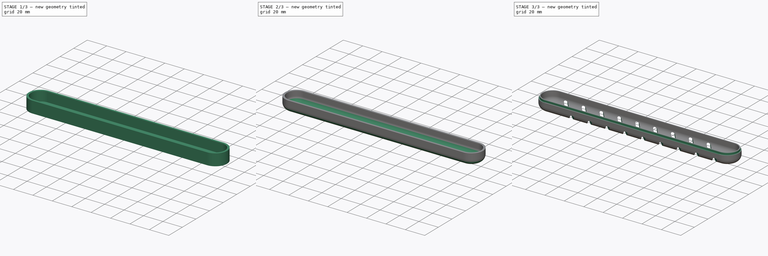
[diagram: build sequence overview — one tinted view per stage of 3, left to right]
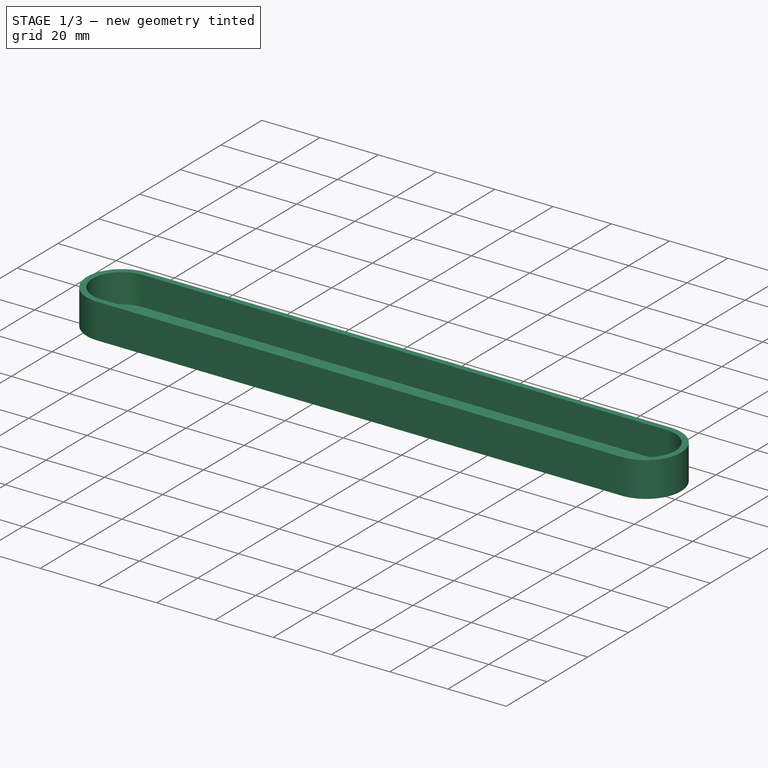
[diagram: stage 1 of 3 — iso view after this stage's code; geometry added in this stage tinted green]
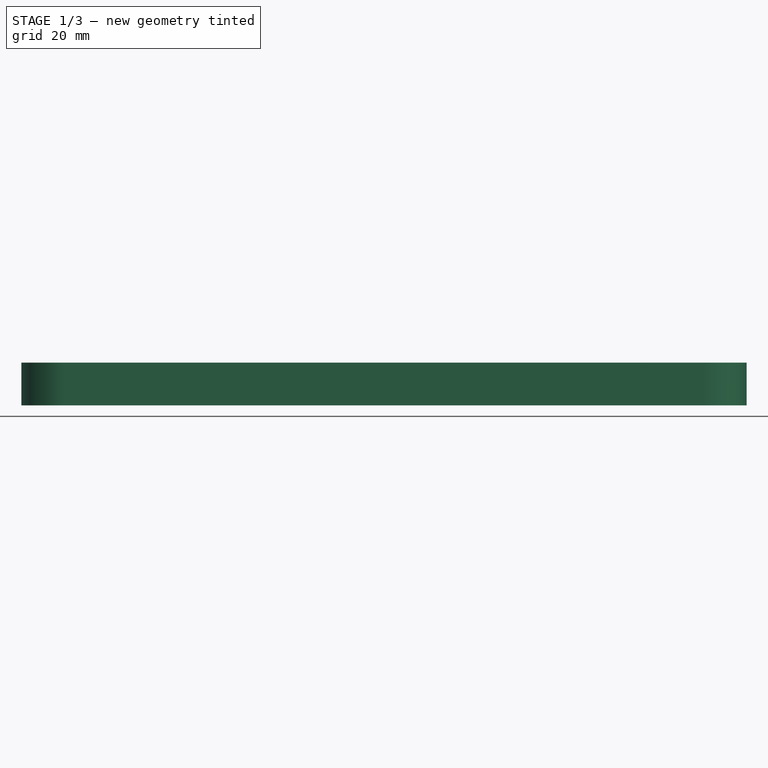
[diagram: stage 1 of 3 — front view after this stage's code; geometry added in this stage tinted green]
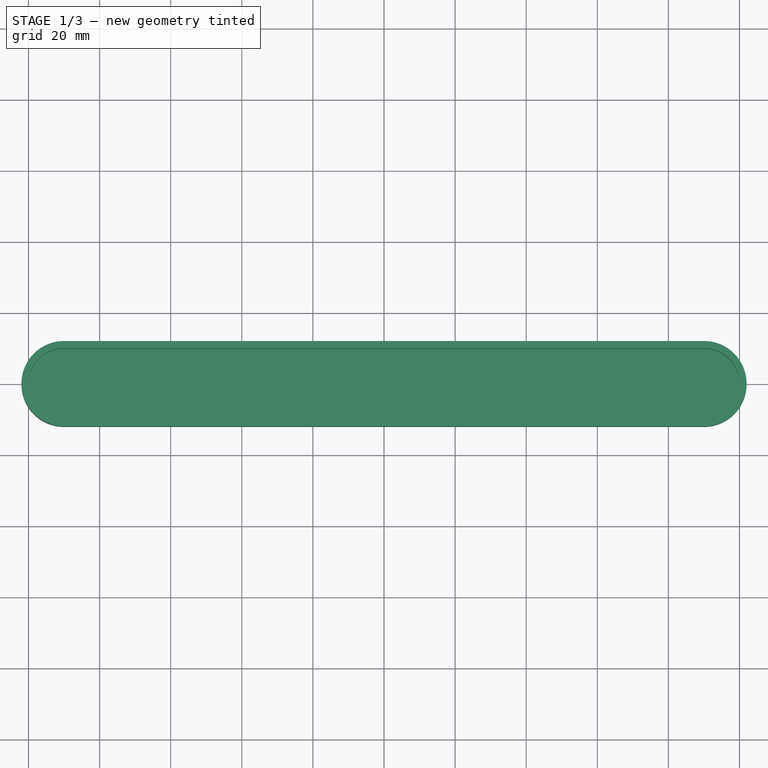
[diagram: stage 1 of 3 — top view after this stage's code; geometry added in this stage tinted green]
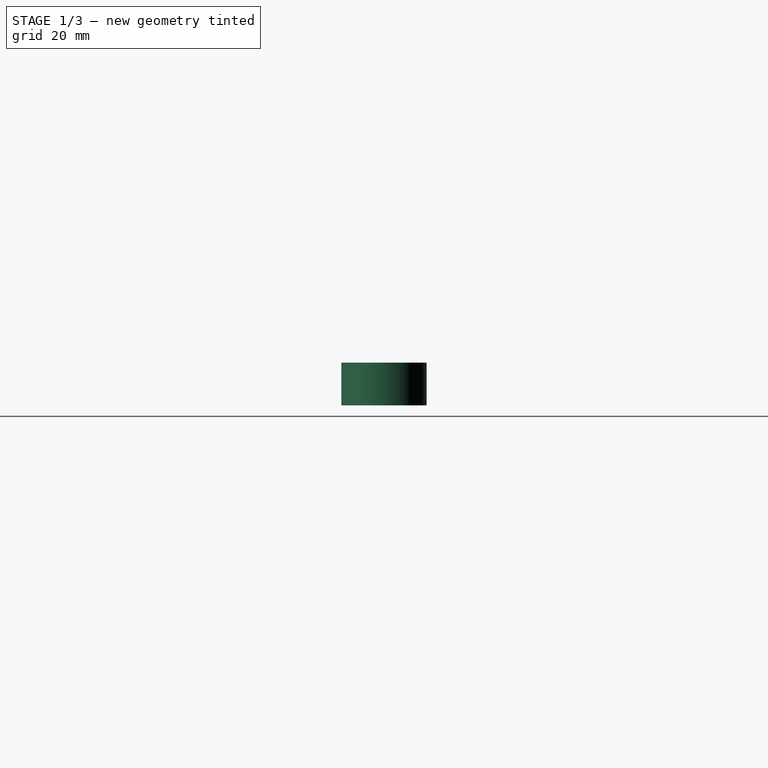
[diagram: stage 1 of 3 — right view after this stage's code; geometry added in this stage tinted green]
FCSTD DOCUMENT  (FreeCAD 0.20R)
Label: GM_case_top-2
License: All rights reserved
LicenseURL: http://en.wikipedia.org/wiki/All_rights_reserved
objects: Sketcher::SketchObject×4, PartDesign::Pocket×3, PartDesign::Fillet×2, PartDesign::Pad×1, PartDesign::Plane×1, PartDesign::Body×1
note: 18 computed .brp shape members not serialized (recipe doc carries the construction recipe); baked Part::Feature solids carry a one-line shape summary decoded from their .brp

FEATURE [Sketcher::SketchObject] Sketch
  FullyConstrained = true
  MapMode = 5
  Support = -> [XY_Plane]
  sketch-geometry (4):
    g0: LineSegment StartX=-90 StartY=12 StartZ=0 EndX=90 EndY=12 EndZ=0
    g1: LineSegment StartX=-90 StartY=-12 StartZ=0 EndX=90 EndY=-12 EndZ=0
    g2: ArcOfCircle CenterX=90 CenterY=0 CenterZ=0 NormalX=0 NormalY=0 NormalZ=1 AngleXU=0 Radius=12 StartAngle=4.71239 EndAngle=7.85398
    g3: ArcOfCircle CenterX=-90 CenterY=0 CenterZ=0 NormalX=0 NormalY=0 NormalZ=1 AngleXU=0 Radius=12 StartAngle=1.5708 EndAngle=4.71239
  constraints (13):
    c: Horizontal(g0)
    c: Horizontal(g1)
    c: PointOnObject(g2,g-1)
    c: Coincident(g2,g0)
    c: Coincident(g2,g1)
    c: Coincident(g3,g0)
    c: Coincident(g3,g1)
    c: Symmetric(g2,g3,g-2)
    c: Vertical(g1,g3)
    c: Vertical(g3,g0)
    c: Vertical(g1,g2)
    c: Radius(g2) = 12
    c: DistanceX(g3,g2) = 180
FEATURE [PartDesign::Pad] Pad
  Direction = (1,1,1)
  Length = 12
  Length2 = 100
  Profile = -> Sketch
  Type = 0
FEATURE [Sketcher::SketchObject] Sketch001
  FullyConstrained = true
  MapMode = 5
  Placement = pos=(0,0,12) rot=(0,0,1;0rad)
  Support = -> [Pad]
  sketch-geometry (4):
    g0: LineSegment StartX=-90 StartY=10 StartZ=0 EndX=90 EndY=10 EndZ=0
    g1: LineSegment StartX=-90 StartY=-10 StartZ=0 EndX=90 EndY=-10 EndZ=0
    g2: ArcOfCircle CenterX=90 CenterY=0 CenterZ=0 NormalX=0 NormalY=0 NormalZ=1 AngleXU=0 Radius=10 StartAngle=4.71239 EndAngle=7.85398
    g3: ArcOfCircle CenterX=-90 CenterY=0 CenterZ=0 NormalX=0 NormalY=0 NormalZ=1 AngleXU=0 Radius=10 StartAngle=1.5708 EndAngle=4.71239
  constraints (13):
    c: Horizontal(g0)
    c: Horizontal(g1)
    c: PointOnObject(g2,g-1)
    c: Coincident(g2,g0)
    c: Coincident(g2,g1)
    c: Coincident(g3,g0)
    c: Coincident(g3,g1)
    c: Symmetric(g2,g3,g-2)
    c: Vertical(g1,g3)
    c: Vertical(g3,g0)
    c: Vertical(g1,g2)
    c: DistanceX(g3,g2) = 180
    c: Radius(g2) = 10
FEATURE [PartDesign::Pocket] Pocket
  BaseFeature = -> Pad
  Direction = (1,1,1)
  Length = 10
  Length2 = 100
  Profile = -> Sketch001
  Type = 0
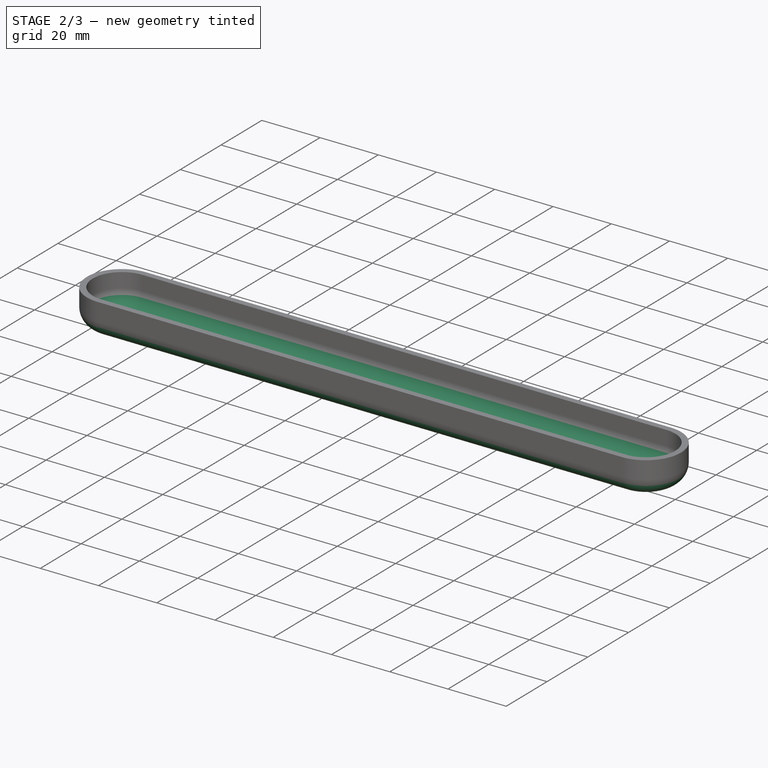
[diagram: stage 2 of 3 — iso view after this stage's code; geometry added in this stage tinted green]
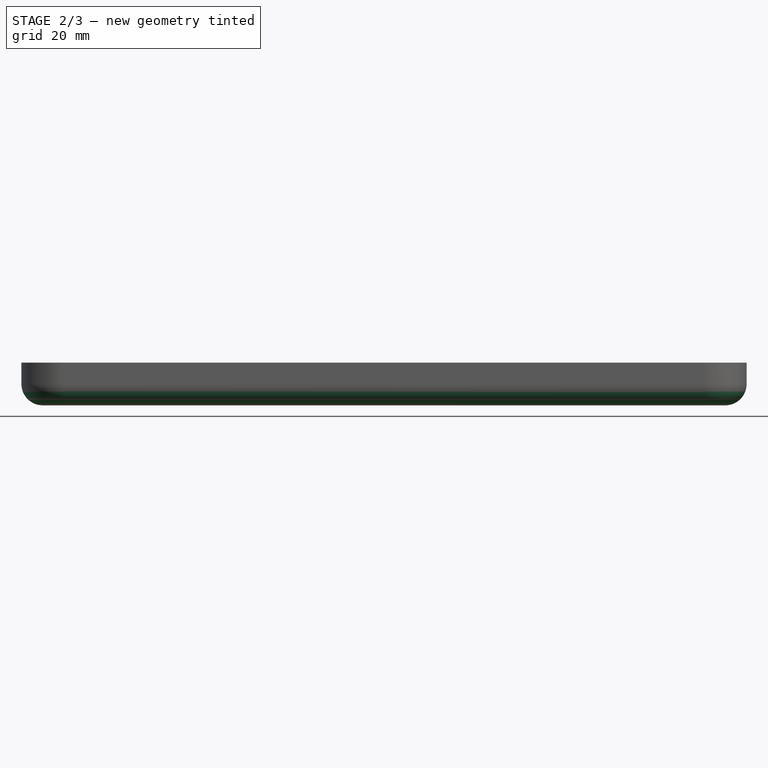
[diagram: stage 2 of 3 — front view after this stage's code; geometry added in this stage tinted green]
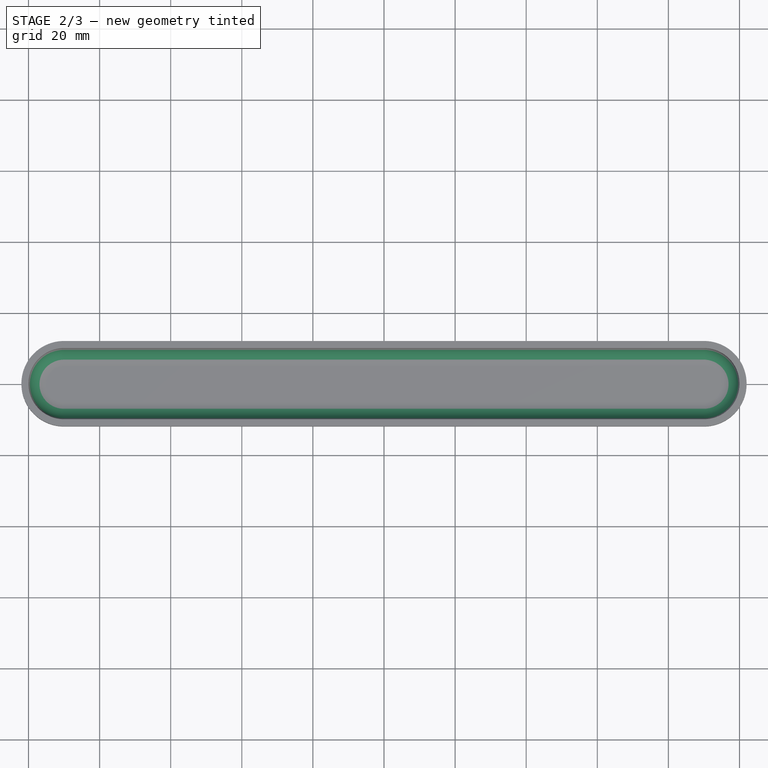
[diagram: stage 2 of 3 — top view after this stage's code; geometry added in this stage tinted green]
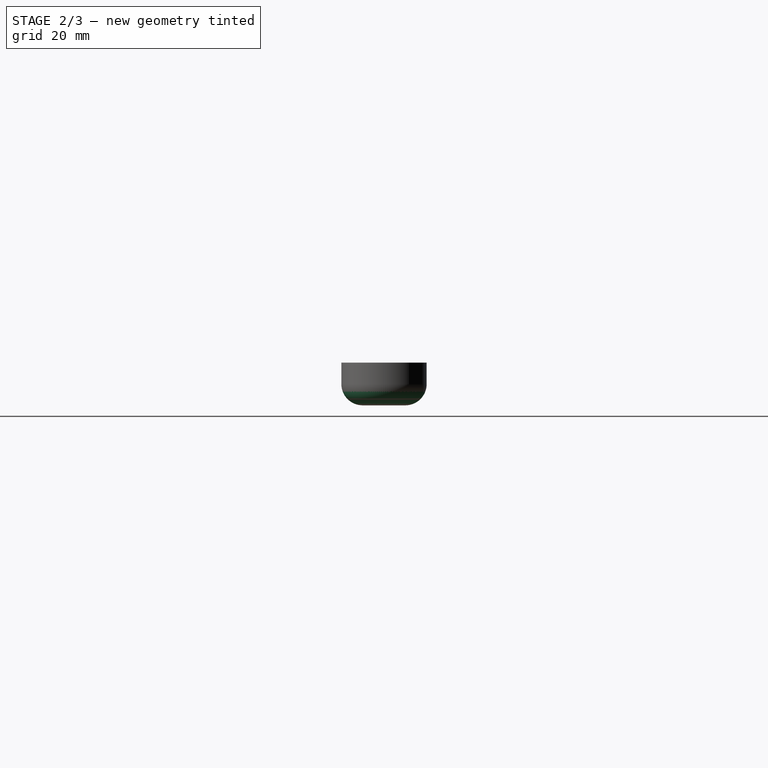
[diagram: stage 2 of 3 — right view after this stage's code; geometry added in this stage tinted green]
FEATURE [PartDesign::Fillet] Fillet
  Base = -> Pocket [Edge19]
  BaseFeature = -> Pocket
  Radius = 5
  SupportTransform = false
  UseAllEdges = false
FEATURE [PartDesign::Fillet] Fillet001
  Base = -> Fillet [Edge32]
  BaseFeature = -> Fillet
  Radius = 6
  SupportTransform = false
  UseAllEdges = false
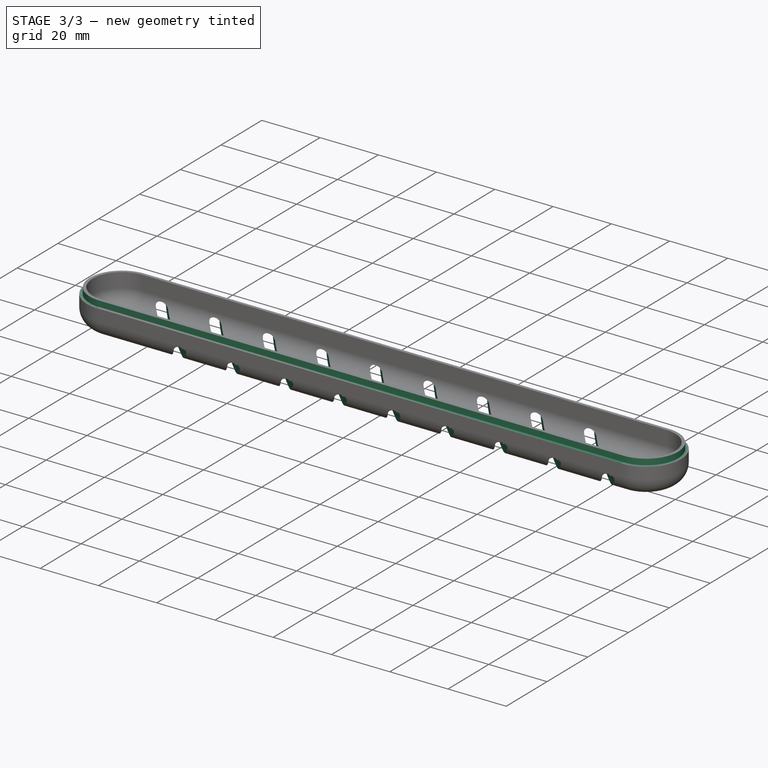
[diagram: stage 3 of 3 — iso view after this stage's code; geometry added in this stage tinted green]
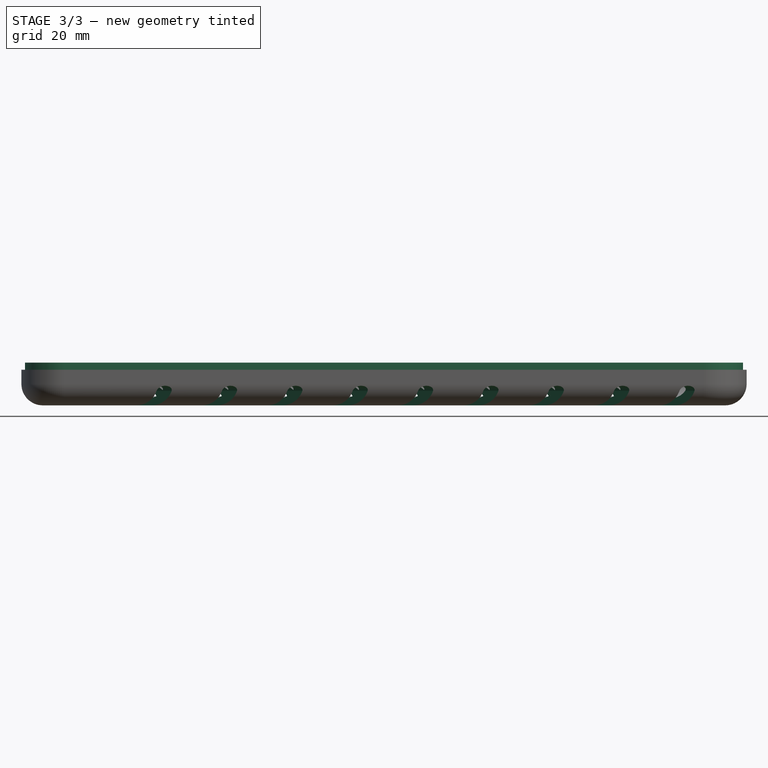
[diagram: stage 3 of 3 — front view after this stage's code; geometry added in this stage tinted green]
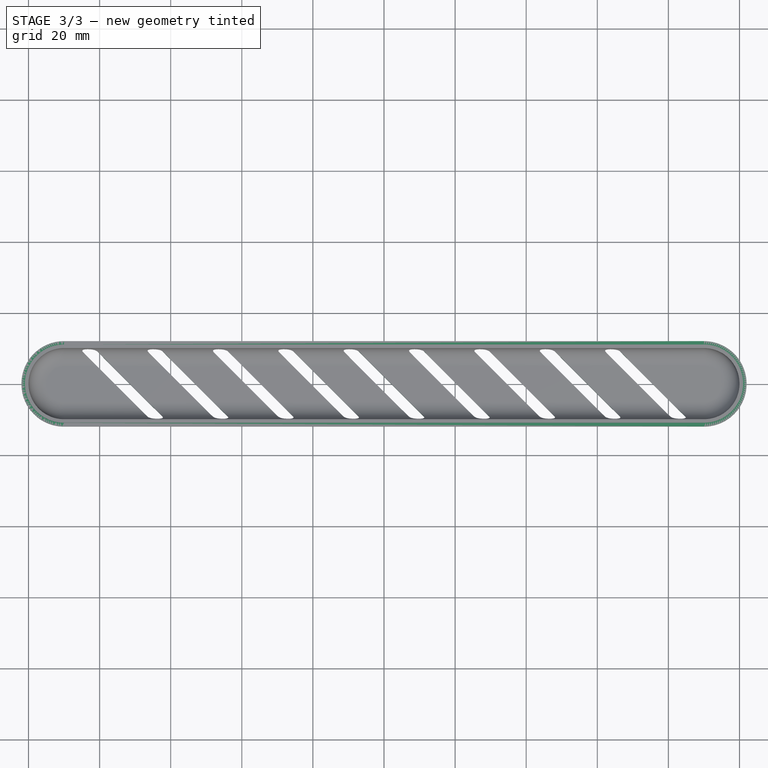
[diagram: stage 3 of 3 — top view after this stage's code; geometry added in this stage tinted green]
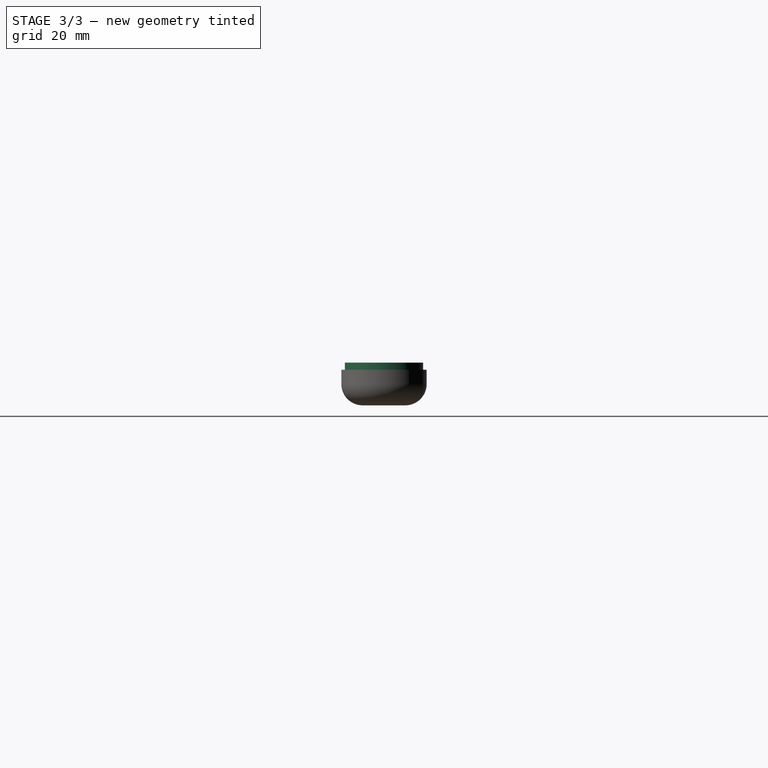
[diagram: stage 3 of 3 — right view after this stage's code; geometry added in this stage tinted green]
FEATURE [Sketcher::SketchObject] Sketch002
  FullyConstrained = false
  MapMode = 5
  Placement = pos=(0,0,12) rot=(0,0,1;0rad)
  Support = -> [Fillet001]
  sketch-geometry (8):
    g0: LineSegment StartX=-90 StartY=11 StartZ=0 EndX=90 EndY=11 EndZ=0
    g1: LineSegment StartX=-90 StartY=-11 StartZ=0 EndX=90 EndY=-11 EndZ=0
    g2: ArcOfCircle CenterX=90 CenterY=0 CenterZ=0 NormalX=0 NormalY=0 NormalZ=1 AngleXU=0 Radius=11 StartAngle=4.71239 EndAngle=7.85398
    g3: ArcOfCircle CenterX=-90 CenterY=0 CenterZ=0 NormalX=0 NormalY=0 NormalZ=1 AngleXU=0 Radius=11 StartAngle=1.5708 EndAngle=4.71239
    g4: LineSegment StartX=-105.924 StartY=24.325 StartZ=0 EndX=105.549 EndY=24.325 EndZ=0
    g5: LineSegment StartX=105.549 StartY=24.325 StartZ=0 EndX=105.549 EndY=-21.4814 EndZ=0
    g6: LineSegment StartX=105.549 StartY=-21.4814 StartZ=0 EndX=-105.924 EndY=-21.4814 EndZ=0
    g7: LineSegment StartX=-105.924 StartY=-21.4814 StartZ=0 EndX=-105.924 EndY=24.325 EndZ=0
  constraints (20):
    c: Horizontal(g0)
    c: PointOnObject(g2,g-1)
    c: Coincident(g2,g0)
    c: Coincident(g2,g1)
    c: Coincident(g3,g0)
    c: Coincident(g3,g1)
    c: Symmetric(g3,g2,g-2)
    c: DistanceX(g3,g2) = 180
    c: Vertical(g1,g3)
    c: Vertical(g3,g0)
    c: Vertical(g1,g2)
    c: Radius(g2) = 11
    c: Coincident(g4,g5)
    c: Coincident(g5,g6)
    c: Coincident(g6,g7)
    c: Coincident(g7,g4)
    c: Horizontal(g4)
    c: Horizontal(g6)
    c: Vertical(g5)
    c: Vertical(g7)
FEATURE [PartDesign::Pocket] Pocket001
  BaseFeature = -> Fillet001
  Direction = (1,1,1)
  Length = 2
  Length2 = 100
  Profile = -> Sketch002
  Type = 0
FEATURE [PartDesign::Plane] DatumPlane
  AttachmentOffset = pos=(0,0,0) rot=(0,1,0;0.785398rad)
  Length = 198.558
  MapMode = 3
  Placement = pos=(0,0,0) rot=(0.862856,0.357407,0.357407;1.71777rad)
  ResizeMode = 0
  Support = -> [Pocket001]
  Width = 68.9528
FEATURE [Sketcher::SketchObject] Sketch003
  FullyConstrained = true
  MapMode = 5
  Placement = pos=(0,0,0) rot=(0.862856,0.357407,0.357407;1.71777rad)
  Support = -> [DatumPlane]
  sketch-geometry (44):
    g0: ArcOfCircle CenterX=-52 CenterY=4 CenterZ=0 NormalX=0 NormalY=0 NormalZ=1 AngleXU=0 Radius=1.5 StartAngle=1e-16 EndAngle=3.14159
    g1: LineSegment StartX=-53.5 StartY=4 StartZ=0 EndX=-53.5 EndY=-1 EndZ=0
    g2: LineSegment StartX=-50.5 StartY=4 StartZ=0 EndX=-50.5 EndY=-1 EndZ=0
    g3: LineSegment StartX=-53.5 StartY=-1 StartZ=0 EndX=-50.5 EndY=-1 EndZ=0
    g4: LineSegment StartX=-50.5 StartY=-1 StartZ=0 EndX=-40.5 EndY=-1 EndZ=0
    g5: LineSegment StartX=-40.5 StartY=-1 StartZ=0 EndX=-40.5 EndY=4 EndZ=0
    g6: LineSegment StartX=-40.5 StartY=-1 StartZ=0 EndX=-37.5 EndY=-1 EndZ=0
    g7: LineSegment StartX=-37.5 StartY=-1 StartZ=0 EndX=-37.5 EndY=4 EndZ=0
    g8: LineSegment StartX=-27.5 StartY=-1 StartZ=0 EndX=-27.5 EndY=4 EndZ=0
    g9: LineSegment StartX=-27.5 StartY=-1 StartZ=0 EndX=-24.5 EndY=-1 EndZ=0
    g10: LineSegment StartX=-24.5 StartY=-1 StartZ=0 EndX=-24.5 EndY=4 EndZ=0
    g11: LineSegment StartX=-14.5 StartY=4 StartZ=0 EndX=-14.5 EndY=-1 EndZ=0
    g12: LineSegment StartX=-14.5 StartY=-1 StartZ=0 EndX=-11.5 EndY=-1 EndZ=0
    g13: LineSegment StartX=-11.5 StartY=-1 StartZ=0 EndX=-11.5 EndY=4 EndZ=0
    g14: LineSegment StartX=-37.5 StartY=-1 StartZ=0 EndX=-27.5 EndY=-1 EndZ=0
    g15: LineSegment StartX=-24.5 StartY=-1 StartZ=0 EndX=-14.5 EndY=-1 EndZ=0
    g16: ArcOfCircle CenterX=-39 CenterY=4 CenterZ=0 NormalX=0 NormalY=0 NormalZ=1 AngleXU=0 Radius=1.5 StartAngle=1e-16 EndAngle=3.14159
    g17: ArcOfCircle CenterX=-26 CenterY=4 CenterZ=0 NormalX=0 NormalY=0 NormalZ=1 AngleXU=0 Radius=1.5 StartAngle=1e-16 EndAngle=3.14159
    g18: ArcOfCircle CenterX=-13 CenterY=4 CenterZ=0 NormalX=0 NormalY=0 NormalZ=1 AngleXU=0 Radius=1.5 StartAngle=0 EndAngle=3.14159
    g19: LineSegment StartX=-1.5 StartY=-1 StartZ=0 EndX=-1.5 EndY=4 EndZ=0
    g20: LineSegment StartX=-1.5 StartY=-1 StartZ=0 EndX=1.5 EndY=-1 EndZ=0
    g21: LineSegment StartX=1.5 StartY=-1 StartZ=0 EndX=1.5 EndY=4 EndZ=0
    g22: LineSegment StartX=-11.5 StartY=-1 StartZ=0 EndX=-1.5 EndY=-1 EndZ=0
    g23: ArcOfCircle CenterX=-1e-16 CenterY=4 CenterZ=0 NormalX=0 NormalY=0 NormalZ=1 AngleXU=0 Radius=1.5 StartAngle=0 EndAngle=3.14159
    g24: LineSegment StartX=11.5 StartY=-1 StartZ=0 EndX=11.5 EndY=4 EndZ=0
    g25: LineSegment StartX=11.5 StartY=-1 StartZ=0 EndX=14.5 EndY=-1 EndZ=0
    g26: LineSegment StartX=14.5 StartY=-1 StartZ=0 EndX=14.5 EndY=4 EndZ=0
    g27: LineSegment StartX=24.5 StartY=4 StartZ=0 EndX=24.5 EndY=-1 EndZ=0
    g28: LineSegment StartX=24.5 StartY=-1 StartZ=0 EndX=27.5 EndY=-1 EndZ=0
    g29: LineSegment StartX=27.5 StartY=-1 StartZ=0 EndX=27.5 EndY=4 EndZ=0
    g30: LineSegment StartX=37.5 StartY=4 StartZ=0 EndX=37.5 EndY=-1 EndZ=0
    g31: LineSegment StartX=37.5 StartY=-1 StartZ=0 EndX=40.5 EndY=-1 EndZ=0
    g32: LineSegment StartX=40.5 StartY=-1 StartZ=0 EndX=40.5 EndY=4 EndZ=0
    g33: LineSegment StartX=50.5 StartY=4 StartZ=0 EndX=50.5 EndY=-1 EndZ=0
    g34: LineSegment StartX=50.5 StartY=-1 StartZ=0 EndX=53.5 EndY=-1 EndZ=0
    g35: LineSegment StartX=53.5 StartY=-1 StartZ=0 EndX=53.5 EndY=4 EndZ=0
    g36: ArcOfCircle CenterX=13 CenterY=4 CenterZ=0 NormalX=0 NormalY=0 NormalZ=1 AngleXU=0 Radius=1.5 StartAngle=0 EndAngle=3.14159
    g37: ArcOfCircle CenterX=26 CenterY=4 CenterZ=0 NormalX=0 NormalY=0 NormalZ=1 AngleXU=0 Radius=1.5 StartAngle=0 EndAngle=3.14159
    g38: ArcOfCircle CenterX=39 CenterY=4 CenterZ=0 NormalX=0 NormalY=0 NormalZ=1 AngleXU=0 Radius=1.5 StartAngle=0 EndAngle=3.14159
    g39: ArcOfCircle CenterX=52 CenterY=4 CenterZ=0 NormalX=0 NormalY=0 NormalZ=1 AngleXU=0 Radius=1.5 StartAngle=0 EndAngle=3.14159
    g40: LineSegment StartX=1.5 StartY=-1 StartZ=0 EndX=11.5 EndY=-1 EndZ=0
    g41: LineSegment StartX=14.5 StartY=-1 StartZ=0 EndX=24.5 EndY=-1 EndZ=0
    g42: LineSegment StartX=27.5 StartY=-1 StartZ=0 EndX=37.5 EndY=-1 EndZ=0
    g43: LineSegment StartX=40.5 StartY=-1 StartZ=0 EndX=50.5 EndY=-1 EndZ=0
  constraints (132):
    c: Coincident(g1,g0)
    c: Vertical(g1)
    c: Coincident(g2,g0)
    c: Vertical(g2)
    c: Coincident(g3,g1)
    c: Coincident(g3,g2)
    c: Horizontal(g3)
    c: Horizontal(g0,g0)
    c: Horizontal(g0,g0)
    c: Radius(g0) = 1.5
    c: DistanceY(g-1,g0) = 4
    c: Coincident(g4,g2)
    c: Horizontal(g4)
    c: DistanceY(g1,g1) = 5
    c: DistanceX(g4,g4) = 10
    c: Coincident(g5,g4)
    c: Vertical(g5)
    c: Coincident(g6,g5)
    c: Horizontal(g6)
    c: Coincident(g7,g6)
    c: Vertical(g7)
    c: Vertical(g8)
    c: Coincident(g9,g8)
    c: Horizontal(g9)
    c: Coincident(g10,g9)
    c: Vertical(g10)
    c: Vertical(g11)
    c: Coincident(g12,g11)
    c: Horizontal(g12)
    c: Coincident(g13,g12)
    c: Vertical(g13)
    c: Coincident(g14,g6)
    c: Coincident(g14,g8)
    c: Horizontal(g14)
    c: Coincident(g15,g9)
    c: Coincident(g15,g11)
    c: Horizontal(g15)
    c: Equal(g1,g5)
    c: Equal(g5,g8)
    c: Equal(g8,g11)
    c: Coincident(g16,g5)
    c: Coincident(g16,g7)
    c: Coincident(g17,g8)
    c: Coincident(g17,g10)
    c: Coincident(g18,g11)
    c: Coincident(g18,g13)
    c: Horizontal(g5,g16)
    c: Horizontal(g16,g7)
    c: Horizontal(g8,g17)
    c: Horizontal(g17,g10)
    c: Horizontal(g11,g18)
    c: Horizontal(g18,g13)
    c: Equal(g4,g14)
    c: Equal(g14,g15)
    c: Equal(g0,g16)
    c: Equal(g16,g17)
    c: Equal(g17,g18)
    c: Coincident(g20,g19)
    c: Vertical(g19)
    c: Symmetric(g20,g19,g-2)
    c: Coincident(g21,g20)
    c: Vertical(g21)
    c: Equal(g20,g12)
    c: Coincident(g22,g12)
    c: Coincident(g22,g19)
    c: Horizontal(g22)
    c: Equal(g15,g22)
    c: Coincident(g23,g19)
    c: Coincident(g23,g21)
    c: Horizontal(g19,g23)
    c: Horizontal(g23,g21)
    c: Equal(g19,g13)
    c: Vertical(g24)
    c: Coincident(g25,g24)
    c: Horizontal(g25)
    c: Coincident(g26,g25)
    c: Vertical(g26)
    c: Vertical(g27)
    c: Coincident(g27,g28)
    c: Horizontal(g28)
    c: Coincident(g28,g29)
    c: Vertical(g29)
    c: Vertical(g30)
    c: Coincident(g30,g31)
    c: Horizontal(g31)
    c: Coincident(g31,g32)
    c: Vertical(g32)
    c: Vertical(g33)
    c: Coincident(g33,g34)
    c: Horizontal(g34)
    c: Coincident(g34,g35)
    c: Vertical(g35)
    c: Coincident(g36,g24)
    c: Coincident(g36,g26)
    c: Coincident(g37,g27)
    c: Coincident(g37,g29)
    c: Coincident(g38,g30)
    c: Coincident(g38,g32)
    c: Coincident(g39,g33)
    c: Coincident(g39,g35)
    c: Coincident(g40,g20)
    c: Coincident(g40,g24)
    c: Horizontal(g40)
    c: Coincident(g41,g25)
    c: Coincident(g41,g27)
    c: Coincident(g42,g28)
    c: Coincident(g42,g30)
    c: Horizontal(g42)
    c: Coincident(g43,g31)
    c: Coincident(g43,g33)
    c: Horizontal(g43)
    c: Horizontal(g41)
    c: Equal(g22,g40)
    c: Equal(g40,g41)
    c: Equal(g41,g42)
    c: Equal(g42,g43)
    c: Equal(g12,g25)
    c: Equal(g25,g28)
    c: Equal(g28,g31)
    c: Equal(g31,g34)
    c: Horizontal(g24,g36)
    c: Horizontal(g36,g26)
    c: Horizontal(g27,g37)
    c: Horizontal(g37,g29)
    c: Horizontal(g30,g38)
    c: Horizontal(g38,g32)
    c: Equal(g21,g26)
    c: Equal(g26,g29)
    c: Equal(g29,g32)
    c: Equal(g32,g35)
    c: Horizontal(g33,g39)
    c: Horizontal(g39,g35)
FEATURE [PartDesign::Pocket] Pocket002
  BaseFeature = -> Pocket001
  Direction = (-0.707107,0.707107,0)
  Length = 5
  Length2 = 5
  Midplane = true
  Profile = -> Sketch003
  ReferenceAxis = -> Sketch003 [N_Axis]
  Type = 1
FEATURE [PartDesign::Body] Body
  Group = -> [Sketch,Pad,Sketch001,Pocket,Fillet,Fillet001,Sketch002,Pocket001,DatumPlane,Sketch003,Pocket002]
  Origin = -> Origin
  Tip = -> Pocket002
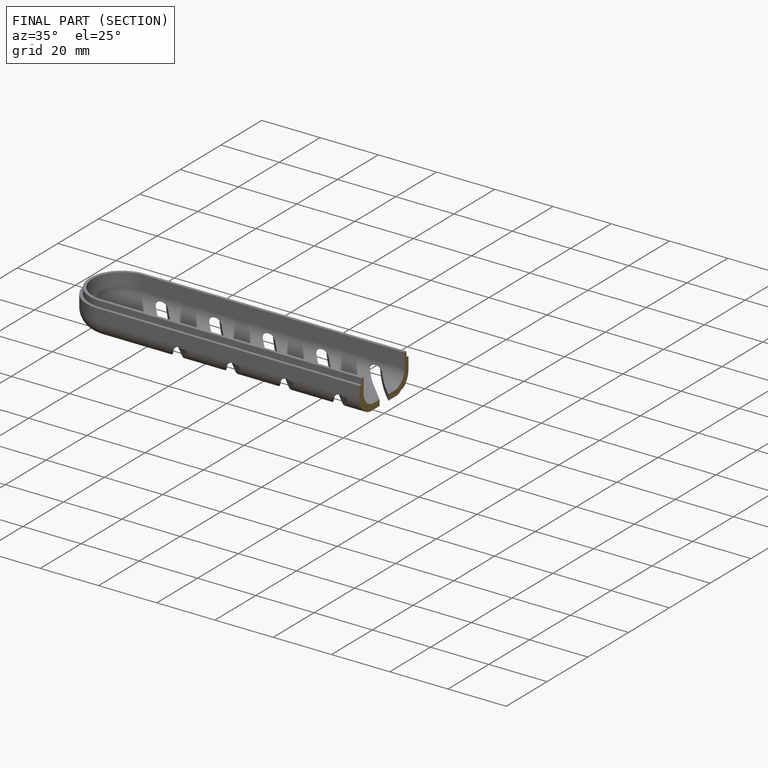
[diagram: finished part — half-section view (interior)]
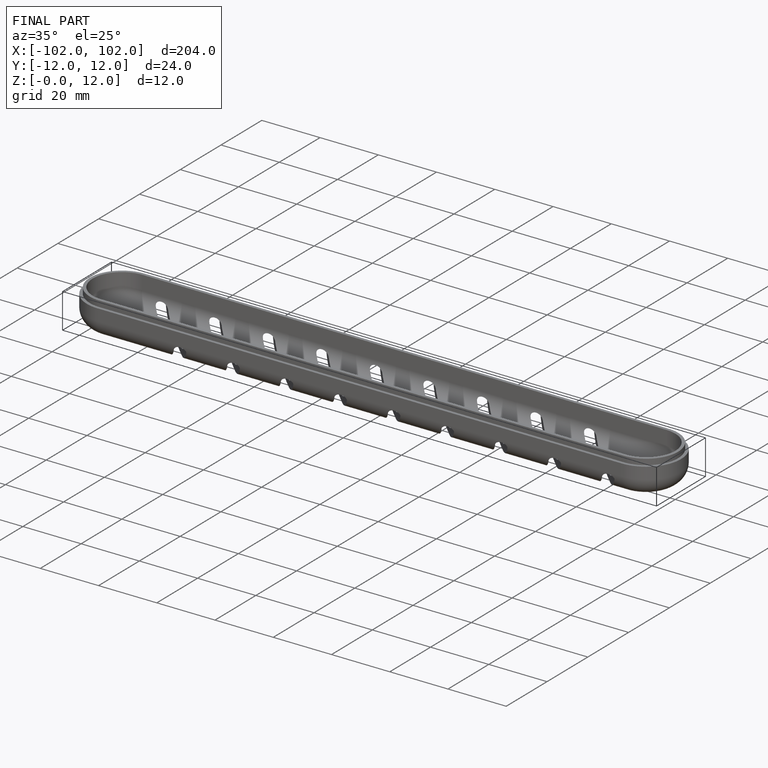
[diagram: finished part — iso view with bounding-box wireframe]
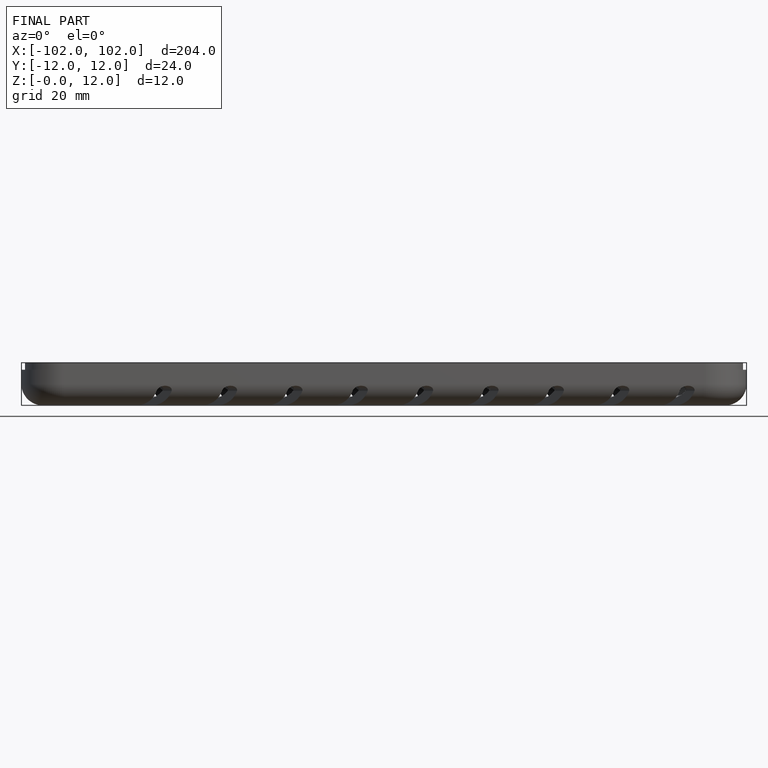
[diagram: finished part — front view with bounding-box wireframe]
